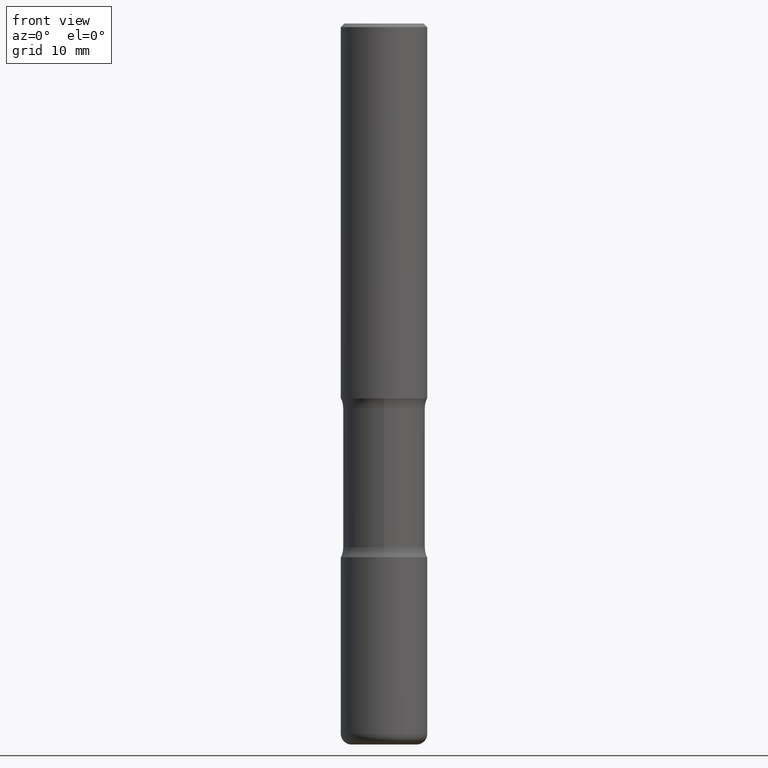
[diagram: clean part render]
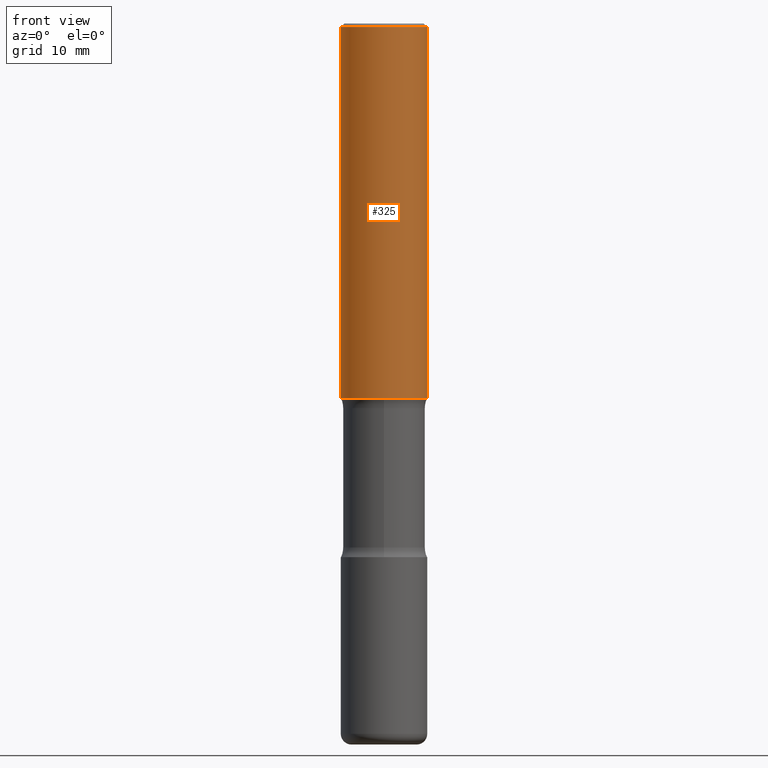
[diagram: same view with one face highlighted and labeled with its STEP entity id]
A machine part, front view. The second image highlights one B-rep face of the part: STEP entity #325.
In plain terms, the highlighted cylindrical surface (partial cylindrical patch) has radius 5.9995 mm, axis along (-0, 0, 1).
Its self-contained STEP definition (entity closure, byte-faithful):
#7 = CYLINDRICAL_SURFACE ( 'NONE', #88, 0.2361999999999999933 ) ;
#8 = EDGE_CURVE ( 'NONE', #21, #9, #61, .T. ) ;
#9 = VERTEX_POINT ( 'NONE', #107 ) ;
#10 = FACE_OUTER_BOUND ( 'NONE', #278, .T. ) ;
#19 = DIRECTION ( 'NONE',  ( -2.445468806185136877E-29, 3.491481338843145188E-15, 1.000000000000000000 ) ) ;
#21 = VERTEX_POINT ( 'NONE', #436 ) ;
#22 = CARTESIAN_POINT ( 'NONE',  ( 5.006363740022212241E-29, -7.147760596879688202E-15, -2.047200000000000131 ) ) ;
#50 = CIRCLE ( 'NONE', #82, 0.2362000000000001321 ) ;
#57 = DIRECTION ( 'NONE',  ( 1.000000000000000000, -6.982962677686266711E-15, 4.876176775795936353E-29 ) ) ;
#61 = LINE ( 'NONE', #444, #452 ) ;
#68 = CARTESIAN_POINT ( 'NONE',  ( 0.2362000000000001321, -8.797136381349186305E-15, -2.047200000000000131 ) ) ;
#82 = AXIS2_PLACEMENT_3D ( 'NONE', #22, #283, #446 ) ;
#83 = DIRECTION ( 'NONE',  ( -2.445468806185136877E-29, 3.491481338843145188E-15, 1.000000000000000000 ) ) ;
#88 = AXIS2_PLACEMENT_3D ( 'NONE', #190, #432, #57 ) ;
#107 = CARTESIAN_POINT ( 'NONE',  ( -0.2361999999999998823, 1.579546157692632438E-15, -0.02000000000000006981 ) ) ;
#142 = EDGE_CURVE ( 'NONE', #9, #540, #241, .T. ) ;
#150 = EDGE_CURVE ( 'NONE', #505, #540, #487, .T. ) ;
#153 = DIRECTION ( 'NONE',  ( -2.445468806185136597E-29, 3.491481338843145583E-15, 1.000000000000000000 ) ) ;
#164 = ORIENTED_EDGE ( 'NONE', *, *, #142, .F. ) ;
#190 = CARTESIAN_POINT ( 'NONE',  ( 0.000000000000000000, 0.000000000000000000, 0.000000000000000000 ) ) ;
#204 = CARTESIAN_POINT ( 'NONE',  ( 4.890937612370289799E-31, -6.982962677686315028E-17, -0.02000000000000006981 ) ) ;
#241 = CIRCLE ( 'NONE', #553, 0.2361999999999998823 ) ;
#278 = EDGE_LOOP ( 'NONE', ( #400, #350, #360, #164 ) ) ;
#283 = DIRECTION ( 'NONE',  ( -2.445468806185136597E-29, 3.491481338843145583E-15, 1.000000000000000000 ) ) ;
#307 = VECTOR ( 'NONE', #83, 39.37007874015748143 ) ;
#314 = DIRECTION ( 'NONE',  ( 1.000000000000000000, -6.982962677686267499E-15, 0.000000000000000000 ) ) ;
#325 = ADVANCED_FACE ( 'NONE', ( #10 ), #7, .T. ) ;
#350 = ORIENTED_EDGE ( 'NONE', *, *, #486, .T. ) ;
#360 = ORIENTED_EDGE ( 'NONE', *, *, #150, .T. ) ;
#400 = ORIENTED_EDGE ( 'NONE', *, *, #8, .F. ) ;
#432 = DIRECTION ( 'NONE',  ( -2.445468806185136597E-29, 3.491481338843145583E-15, 1.000000000000000000 ) ) ;
#436 = CARTESIAN_POINT ( 'NONE',  ( -0.2362000000000001598, -1.930493169962915017E-15, -2.047200000000000131 ) ) ;
#444 = CARTESIAN_POINT ( 'NONE',  ( -0.2361999999999999933, 1.678301941865356591E-15, -1.161852468318208757E-29 ) ) ;
#446 = DIRECTION ( 'NONE',  ( 1.000000000000000000, -6.982962677686269077E-15, 0.000000000000000000 ) ) ;
#452 = VECTOR ( 'NONE', #19, 39.37007874015748143 ) ;
#486 = EDGE_CURVE ( 'NONE', #21, #505, #50, .T. ) ;
#487 = LINE ( 'NONE', #507, #307 ) ;
#505 = VERTEX_POINT ( 'NONE', #68 ) ;
#507 = CARTESIAN_POINT ( 'NONE',  ( 0.2361999999999999933, -1.649375784469496131E-15, 1.151752954443000088E-29 ) ) ;
#535 = CARTESIAN_POINT ( 'NONE',  ( 0.2361999999999998823, -1.690279253850498179E-15, -0.02000000000000006981 ) ) ;
#540 = VERTEX_POINT ( 'NONE', #535 ) ;
#553 = AXIS2_PLACEMENT_3D ( 'NONE', #204, #153, #314 ) ;